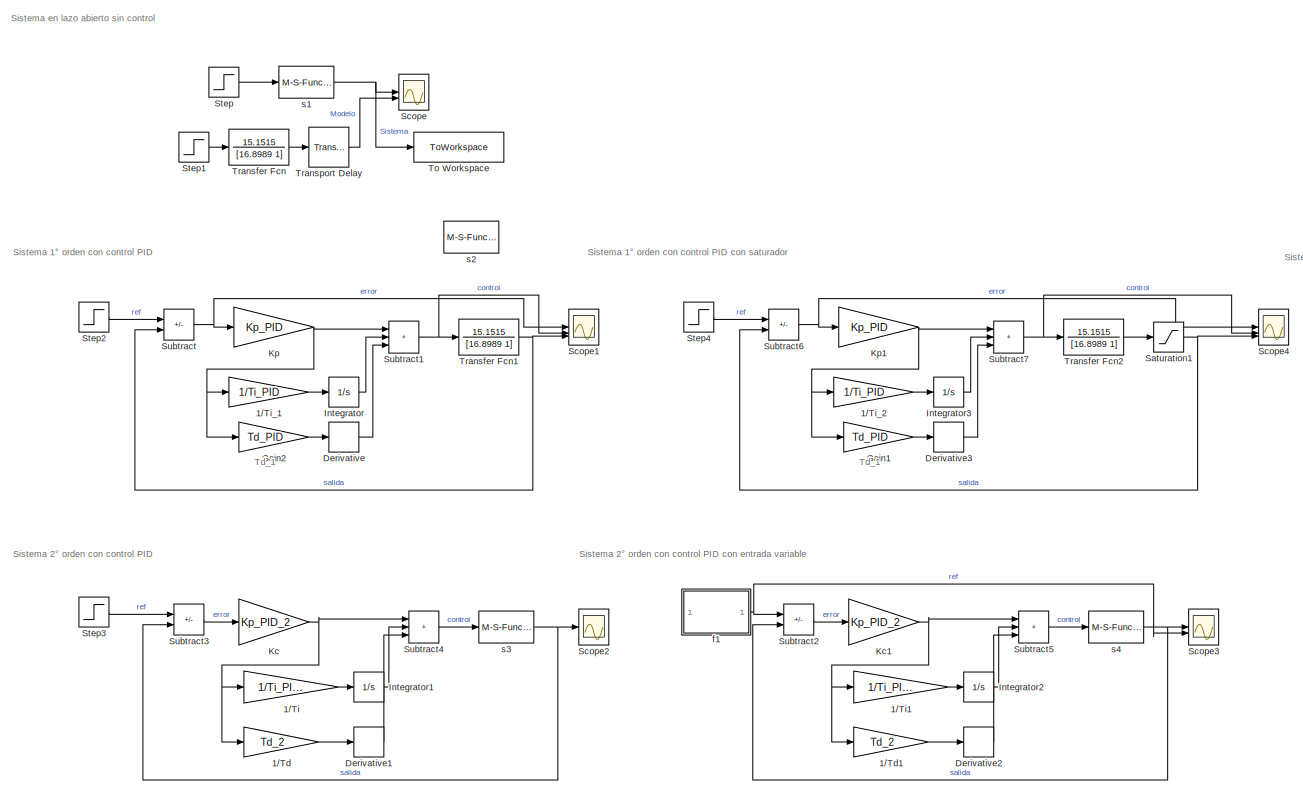
[diagram: root canvas - part 1/2, center side, full height]
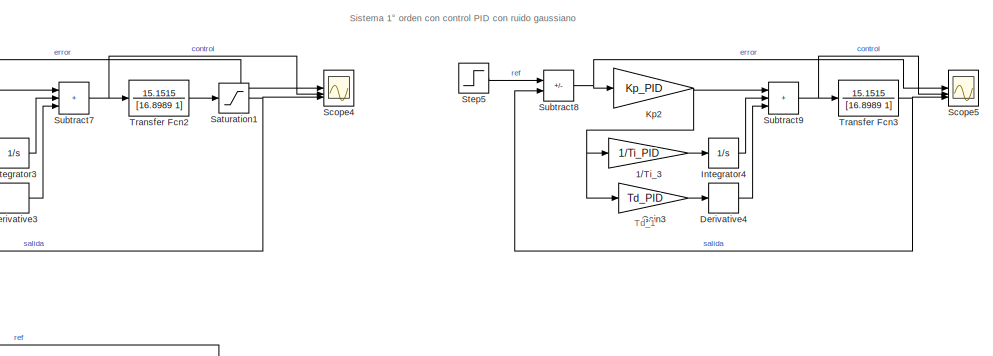
[diagram: root canvas - part 2/2, middle right region]
MODEL slx_0aa1039fc65a
KIND model
CONFIG AbsTol = auto
CONFIG EnableMultiTasking = off
CONFIG FixedStep = auto
CONFIG MaxStep = auto
CONFIG MinStep = auto
CONFIG RelTol = 1e-3
CONFIG SampleTimeConstraint = Unconstrained
CONFIG SolverName = VariableStepAuto
CONFIG StartTime = 0.0
CONFIG StopTime = 200
BLOCK [Gain] 1//Td
  Gain = Td_2
BLOCK [Gain] 1//Td1
  Gain = Td_2
BLOCK [Gain] 1//Ti
  Gain = 1/Ti_PID_2
BLOCK [Gain] 1//Ti1
  Gain = 1/Ti_PID_2
BLOCK [Gain] 1//Ti_1
  Gain = 1/Ti_PID
BLOCK [Gain] 1//Ti_2
  Gain = 1/Ti_PID
BLOCK [Gain] 1//Ti_3
  Gain = 1/Ti_PID
BLOCK [Derivative] Derivative
BLOCK [Derivative] Derivative1
BLOCK [Derivative] Derivative2
BLOCK [Derivative] Derivative3
BLOCK [Derivative] Derivative4
BLOCK [Gain] Gain1
  Gain = Td_PID
BLOCK [Gain] Gain2
  Gain = Td_PID
BLOCK [Gain] Gain3
  Gain = Td_PID
BLOCK [Integrator] Integrator
BLOCK [Integrator] Integrator1
BLOCK [Integrator] Integrator2
BLOCK [Integrator] Integrator3
BLOCK [Integrator] Integrator4
BLOCK [Gain] Kc
  Gain = Kp_PID_2
BLOCK [Gain] Kc1
  Gain = Kp_PID_2
BLOCK [Gain] Kp
  Gain = Kp_PID
BLOCK [Gain] Kp1
  Gain = Kp_PID
BLOCK [Gain] Kp2
  Gain = Kp_PID
BLOCK [Saturate] Saturation1
  LowerLimit = -1
  UpperLimit = 1
BLOCK [Scope] Scope
  Floating = off
  NumInputPorts = 2
  ScopeSpecificationString = Simulink.scopes.TimeScopeBlockCfg('CurrentConfiguration', extmgr.ConfigurationSet(extmgr.Configuration('Core','General UI',true),extmgr.Configuration('Core','Source UI',true),extmgr.Configuration('Sources','WiredSimulink',true),extmgr.Configuration('Visuals','Time Domain',true,'SerializedDisplays',{struct('MinYLimReal','-1.89394','MaxYLimReal','17.04545','YLabelReal','','MinYLimMag','0.00000','Max...<+1462ch>
BLOCK [Scope] Scope1
  Floating = off
  NumInputPorts = 3
  ScopeSpecificationString = Simulink.scopes.TimeScopeBlockCfg('CurrentConfiguration', extmgr.ConfigurationSet(extmgr.Configuration('Core','General UI',true),extmgr.Configuration('Core','Source UI',true),extmgr.Configuration('Sources','WiredSimulink',true,'DataLoggingVariableName','ScopeData1'),extmgr.Configuration('Visuals','Time Domain',true,'SerializedDisplays',{struct('MinYLimReal','-0.15003','MaxYLimReal','1.35027','YLab...<+1490ch>
BLOCK [Scope] Scope2
  Floating = off
  NumInputPorts = 1
  ScopeSpecificationString = Simulink.scopes.TimeScopeBlockCfg('CurrentConfiguration', extmgr.ConfigurationSet(extmgr.Configuration('Core','General UI',true),extmgr.Configuration('Core','Source UI',true),extmgr.Configuration('Sources','WiredSimulink',true,'DataLoggingVariableName','ScopeData1'),extmgr.Configuration('Visuals','Time Domain',true,'SerializedDisplays',{struct('MinYLimReal','-0.14477','MaxYLimReal','1.30297','YLab...<+1462ch>
BLOCK [Scope] Scope3
  Floating = off
  NumInputPorts = 2
  ScopeSpecificationString = Simulink.scopes.TimeScopeBlockCfg('CurrentConfiguration', extmgr.ConfigurationSet(extmgr.Configuration('Core','General UI',true),extmgr.Configuration('Core','Source UI',true),extmgr.Configuration('Sources','WiredSimulink',true,'DataLoggingVariableName','ScopeData1'),extmgr.Configuration('Visuals','Time Domain',true,'SerializedDisplays',{struct('MinYLimReal','-0.14477','MaxYLimReal','1.30297','YLab...<+1453ch>
BLOCK [Scope] Scope4
  Floating = off
  NumInputPorts = 3
  ScopeSpecificationString = Simulink.scopes.TimeScopeBlockCfg('CurrentConfiguration', extmgr.ConfigurationSet(extmgr.Configuration('Core','General UI',true),extmgr.Configuration('Core','Source UI',true),extmgr.Configuration('Sources','WiredSimulink',true,'DataLoggingVariableName','ScopeData2'),extmgr.Configuration('Visuals','Time Domain',true,'SerializedDisplays',{struct('MinYLimReal','-0.20442','MaxYLimReal','2.04603','YLab...<+1505ch>
BLOCK [Scope] Scope5
  Floating = off
  NumInputPorts = 3
  ScopeSpecificationString = Simulink.scopes.TimeScopeBlockCfg('CurrentConfiguration', extmgr.ConfigurationSet(extmgr.Configuration('Core','General UI',true),extmgr.Configuration('Core','Source UI',true),extmgr.Configuration('Sources','WiredSimulink',true,'DataLoggingVariableName','ScopeData3'),extmgr.Configuration('Visuals','Time Domain',true,'SerializedDisplays',{struct('MinYLimReal','-0.20442','MaxYLimReal','2.04603','YLab...<+1531ch>
BLOCK [Step] Step
  SampleTime = 0
BLOCK [Step] Step1
  SampleTime = 0
BLOCK [Step] Step2
  SampleTime = 0
BLOCK [Step] Step3
  SampleTime = 0
BLOCK [Step] Step4
  SampleTime = 0
BLOCK [Step] Step5
  SampleTime = 0
BLOCK [Sum] Subtract
  IconShape = rectangular
  Inputs = +-
BLOCK [Sum] Subtract1
  IconShape = rectangular
  Inputs = +++
BLOCK [Sum] Subtract2
  IconShape = rectangular
  Inputs = +-
BLOCK [Sum] Subtract3
  IconShape = rectangular
  Inputs = +-
BLOCK [Sum] Subtract4
  IconShape = rectangular
  Inputs = +++
BLOCK [Sum] Subtract5
  IconShape = rectangular
  Inputs = +++
BLOCK [Sum] Subtract6
  IconShape = rectangular
  Inputs = +-
BLOCK [Sum] Subtract7
  IconShape = rectangular
  Inputs = +++
BLOCK [Sum] Subtract8
  IconShape = rectangular
  Inputs = +-
BLOCK [Sum] Subtract9
  IconShape = rectangular
  Inputs = +++
BLOCK [ToWorkspace] To Workspace
  FixptAsFi = on
  MaxDataPoints = inf
  SampleTime = -1
  SaveFormat = Timeseries
  VariableName = simout
BLOCK [TransferFcn] Transfer Fcn
  Denominator = [16.8989 1]
  Numerator = 15.1515
BLOCK [TransferFcn] Transfer Fcn1
  Denominator = [16.8989 1]
  Numerator = 15.1515
BLOCK [TransferFcn] Transfer Fcn2
  Denominator = [16.8989 1]
  Numerator = 15.1515
BLOCK [TransferFcn] Transfer Fcn3
  Denominator = [16.8989 1]
  Numerator = 15.1515
BLOCK [TransportDelay] Transport Delay
  DelayTime = 1.25
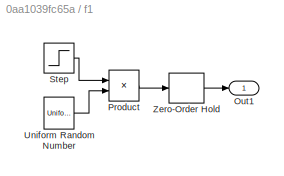
BLOCK [SubSystem] f1
BLOCK [Outport] f1/Out1
BLOCK [Product] f1/Product
  RndMeth = Zero
BLOCK [Step] f1/Step
  SampleTime = 0
  Time = 0
BLOCK [UniformRandomNumber] f1/Uniform Random Number
  Maximum = S
  Minimum = L
  SampleTime = 0
BLOCK [ZeroOrderHold] f1/Zero-Order Hold
  SampleTime = T
BLOCK [M-S-Function] s1
  FunctionName = whoknows
  Parameters = L, P1, P2, T, R
BLOCK [M-S-Function] s2
  FunctionName = whoknows
  Parameters = L, P1, P2, T, R
BLOCK [M-S-Function] s3
  FunctionName = whoknows
  Parameters = L, P1, P2, T, R
BLOCK [M-S-Function] s4
  FunctionName = whoknows
  Parameters = L, P1, P2, T, R
ANNOTATION (root): Sistema 1° orden con control PID con ruido gaussiano
ANNOTATION (root): Sistema 1° orden con control PID con saturador
ANNOTATION (root): Sistema 1° orden con control PID
ANNOTATION (root): Sistema 2° orden con control PID con entrada variable
ANNOTATION (root): Sistema 2° orden con control PID
ANNOTATION (root): Sistema en lazo abierto sin control
ANNOTATION (root): Td_1
LINE 1//Td1:1 -> Derivative2:1
LINE 1//Td:1 -> Derivative1:1
LINE 1//Ti1:1 -> Integrator2:1
LINE 1//Ti:1 -> Integrator1:1
LINE 1//Ti_1:1 -> Integrator:1
LINE 1//Ti_2:1 -> Integrator3:1
LINE 1//Ti_3:1 -> Integrator4:1
LINE Derivative1:1 -> Subtract4:3
LINE Derivative2:1 -> Subtract5:3
LINE Derivative3:1 -> Subtract7:3
LINE Derivative4:1 -> Subtract9:3
LINE Derivative:1 -> Subtract1:3
LINE Gain1:1 -> Derivative3:1
LINE Gain2:1 -> Derivative:1
LINE Gain3:1 -> Derivative4:1
LINE Integrator1:1 -> Subtract4:2
LINE Integrator2:1 -> Subtract5:2
LINE Integrator3:1 -> Subtract7:2
LINE Integrator4:1 -> Subtract9:2
LINE Integrator:1 -> Subtract1:2
NET Kc1:1 -> 1//Td1:1, 1//Ti1:1, Subtract5:1
NET Kc:1 -> 1//Td:1, 1//Ti:1, Subtract4:1
NET Kp1:1 -> 1//Ti_2:1, Gain1:1, Subtract7:1
NET Kp2:1 -> 1//Ti_3:1, Gain3:1, Subtract9:1
NET Kp:1 -> 1//Ti_1:1, Gain2:1, Subtract1:1
NET Saturation1:1 -> Scope4:3, Subtract6:2
LINE Step1:1 -> Transfer Fcn:1
LINE Step2:1 -> Subtract:1
LINE Step3:1 -> Subtract3:1
LINE Step4:1 -> Subtract6:1
LINE Step5:1 -> Subtract8:1
LINE Step:1 -> s1:1
NET Subtract1:1 -> Scope1:2, Transfer Fcn1:1
LINE Subtract2:1 -> Kc1:1
LINE Subtract3:1 -> Kc:1
LINE Subtract4:1 -> s3:1
LINE Subtract5:1 -> s4:1
NET Subtract6:1 -> Kp1:1, Scope4:1
NET Subtract7:1 -> Scope4:2, Transfer Fcn2:1
NET Subtract8:1 -> Kp2:1, Scope5:1
NET Subtract9:1 -> Scope5:2, Transfer Fcn3:1
NET Subtract:1 -> Kp:1, Scope1:1
NET Transfer Fcn1:1 -> Scope1:3, Subtract:2
LINE Transfer Fcn2:1 -> Saturation1:1
NET Transfer Fcn3:1 -> Scope5:3, Subtract8:2
LINE Transfer Fcn:1 -> Transport Delay:1
LINE Transport Delay:1 -> Scope:2
LINE f1/Product:1 -> f1/Zero-Order Hold:1
LINE f1/Step:1 -> f1/Product:1
LINE f1/Uniform Random Number:1 -> f1/Product:2
LINE f1/Zero-Order Hold:1 -> f1/Out1:1
NET f1:1 -> Scope3:2, Subtract2:1
NET s1:1 -> Scope:1, To Workspace:1
NET s3:1 -> Scope2:1, Subtract3:2
NET s4:1 -> Scope3:1, Subtract2:2
note: NET lines group one-source signal fan-out (src -> all destinations, sorted); 1:1 wires keep LINE
